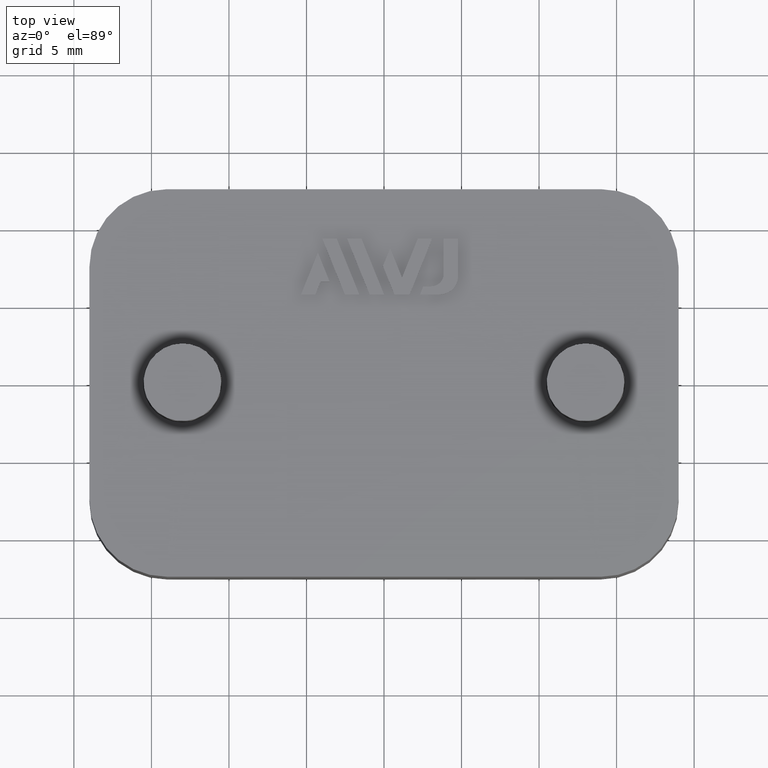
[diagram: clean part render]
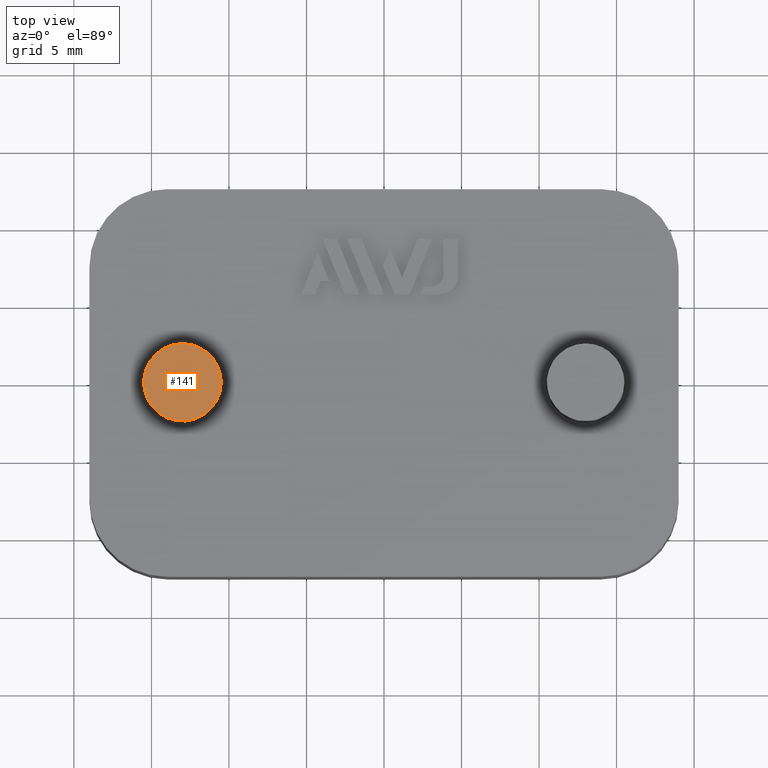
[diagram: same view with one face highlighted and labeled with its STEP entity id]
A machine part, top view. The second image highlights one B-rep face of the part: STEP entity #141.
In plain terms, the highlighted planar face has unit normal (0, -0, -1).
Its self-contained STEP definition (entity closure, byte-faithful):
#141 = ADVANCED_FACE( '', ( #470 ), #471, .F. );
#470 = FACE_OUTER_BOUND( '', #958, .T. );
#471 = PLANE( '', #959 );
#958 = EDGE_LOOP( '', ( #1975 ) );
#959 = AXIS2_PLACEMENT_3D( '', #1976, #1977, #1978 );
#1975 = ORIENTED_EDGE( '', *, *, #3505, .F. );
#1976 = CARTESIAN_POINT( '', ( -13.0000000000000, 0.000165124598850589, 12.5000000000000 ) );
#1977 = DIRECTION( '', ( 0.000000000000000, -6.12303176911189E-017, -1.00000000000000 ) );
#1978 = DIRECTION( '', ( 1.00000000000000, 0.000000000000000, 0.000000000000000 ) );
#3505 = EDGE_CURVE( '', #4451, #4451, #4452, .T. );
#4451 = VERTEX_POINT( '', #5798 );
#4452 = CIRCLE( '', #5799, 2.50000000000000 );
#5798 = CARTESIAN_POINT( '', ( -10.5000000000000, 0.000165124598850589, 12.5000000000000 ) );
#5799 = AXIS2_PLACEMENT_3D( '', #6549, #6550, #6551 );
#6549 = CARTESIAN_POINT( '', ( -13.0000000000000, 0.000165124598850589, 12.5000000000000 ) );
#6550 = DIRECTION( '', ( 0.000000000000000, -6.12303176911189E-017, -1.00000000000000 ) );
#6551 = DIRECTION( '', ( 1.00000000000000, 0.000000000000000, 0.000000000000000 ) );